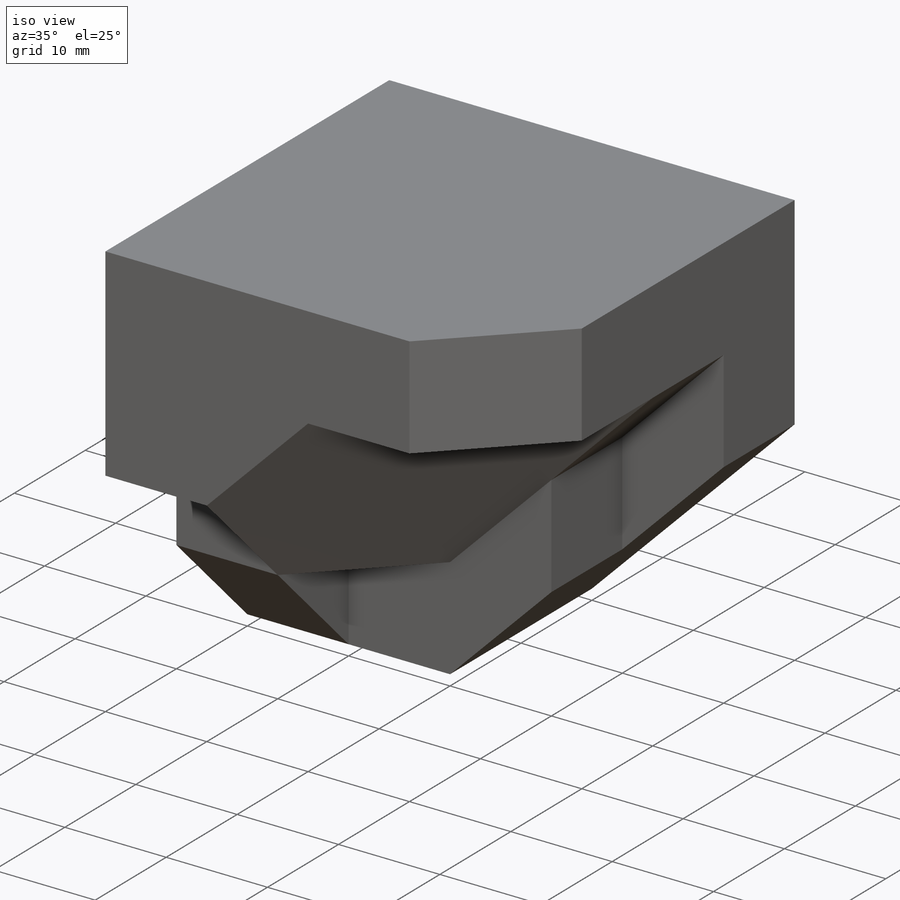
[diagram: iso view]
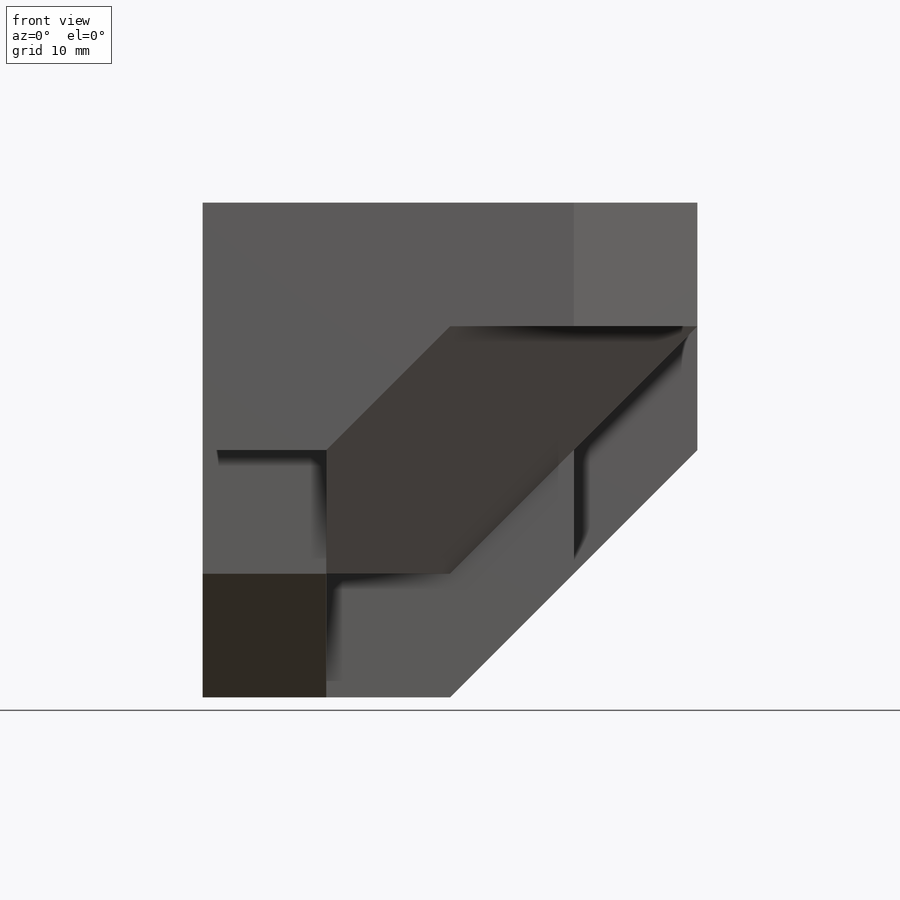
[diagram: front view]
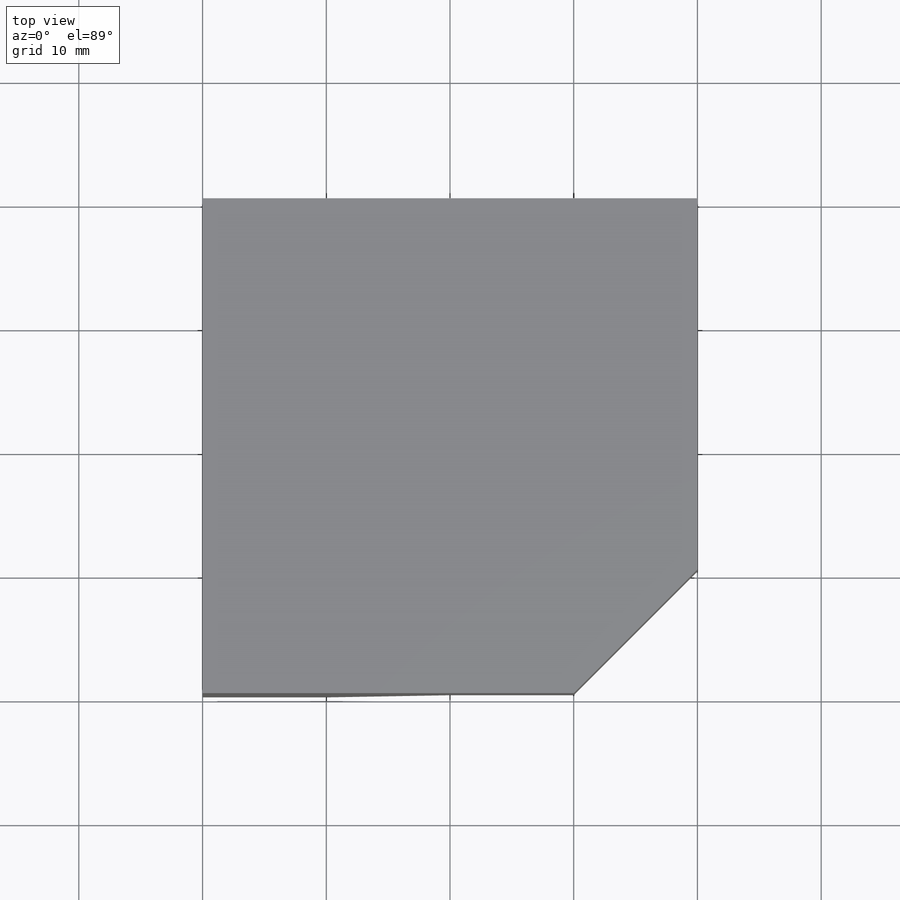
[diagram: top view]
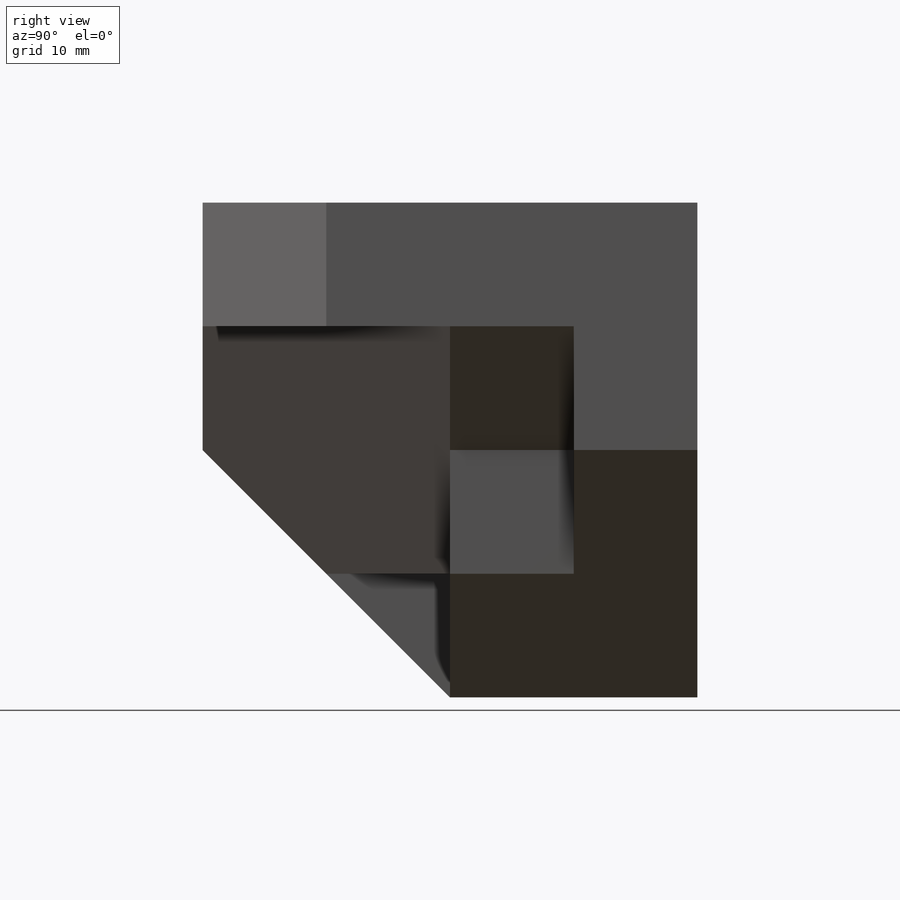
[diagram: right view]
SOLIDWORKS PART (.sldprt)
format: sldprt  version: not decoded by parser v0  size: 275,968 bytes
history: native  units: mm
features: sketch x10, extrude x6, cut_extrude x4, material x1 (+13 scaffold rows collapsed)
feature tree (34):
  scaffold x13  (default folders/planes/origin — collapsed)
  material  "Material <not specified>"
  sketch  "Sketch1"  dims[c1.D1=~53.03756mm c1.D2=~83.488783mm c2.D1=40.0mm c2.D2=40.0mm]
  extrude  "Boss-Extrude1"  Depth=20mm
  sketch  "Sketch2"  dims[D1=20.0mm D2=20.0mm]
  cut_extrude  "Cut-Extrude1"  Depth=20mm
  sketch  "Sketch3"  dims[D1=10.0mm D2=10.0mm D3=10.0mm D4=10.0mm]
  cut_extrude  "Cut-Extrude2"  Depth=10mm
  sketch  "Sketch4"  dims[c1.D1=~9.412911mm c1.D2=~11.542256mm c2.D1=10.0mm c2.D2=20.0mm]
  extrude  "Boss-Extrude2"  Depth=40mm
  sketch  "Sketch5"  dims[D1=10.0mm D2=10.0mm]
  cut_extrude  "Cut-Extrude3"  Depth=40mm
  sketch  "Sketch6"  dims[c1.D1=~9.594612mm c1.D2=~19.945319mm c2.D1=10.0mm c2.D2=20.0mm]
  extrude  "Boss-Extrude3"  Depth=10mm
  sketch  "Sketch7"  dims[D1=10.0mm]
  extrude  "Boss-Extrude4"  Depth=10mm
  sketch  "Sketch8"  dims[D1=10.0mm]
  extrude  "Boss-Extrude5"  Depth=27mm
  sketch  "Sketch9"  dims[c1.D1=~14.571364mm c2.D1=180.0deg]
  extrude  "Boss-Extrude6"  Depth=20mm
  sketch  "3DSketch1"  dims[D1=10.0mm D2=20.0mm D3=10.0mm D4=10.0mm D5=10.0mm]
  cut_extrude  "Cut-Extrude4"  Depth=20mm
decode coverage: 20 of 20 modeling features carry decoded parameters
note: ~ marks probable driven/reference dimensions
note: suppression state not decoded; provenance and decode notes live in map.json
